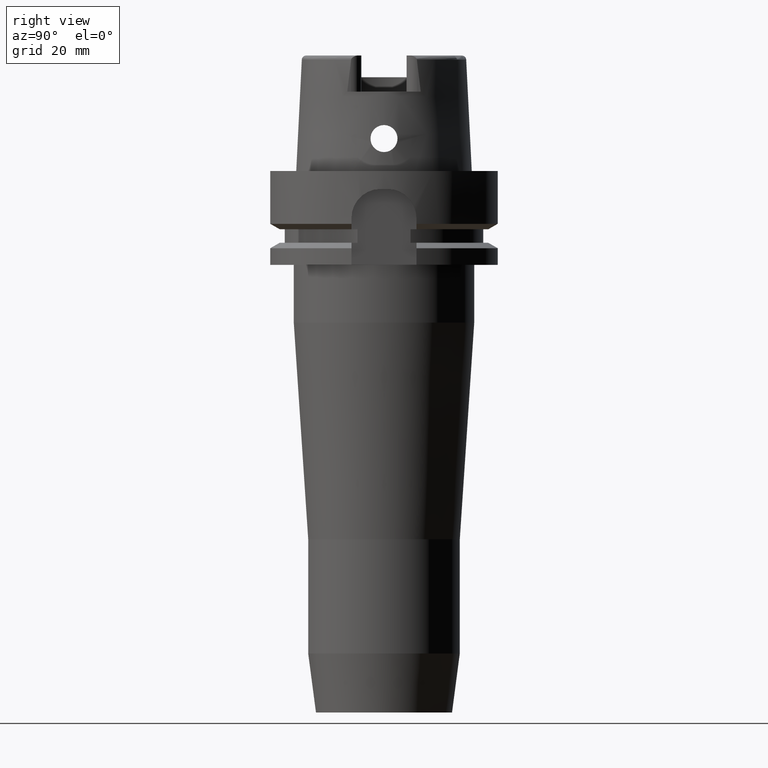
[diagram: clean part render]
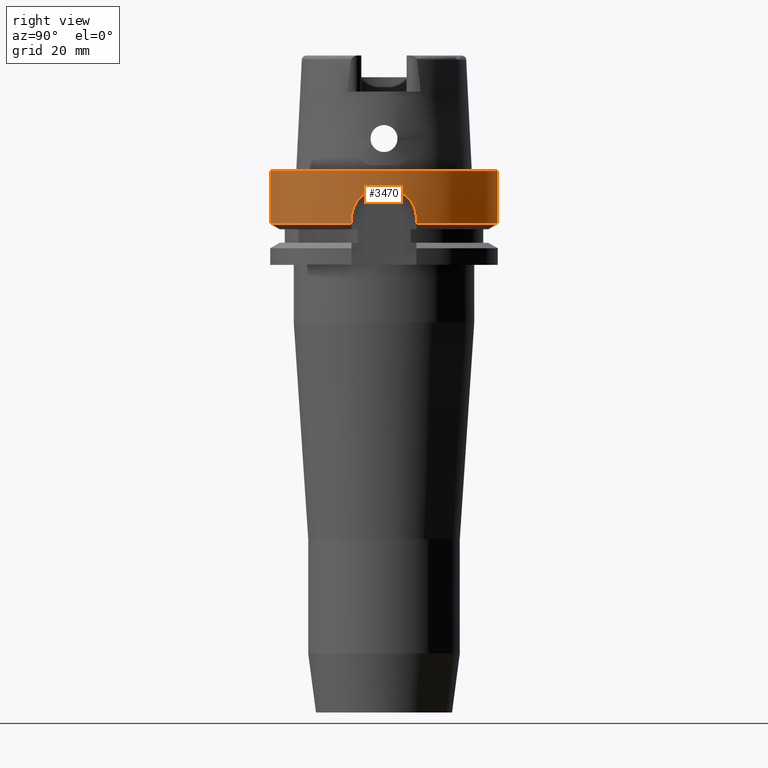
[diagram: same view with one face highlighted and labeled with its STEP entity id]
A machine part, right view. The second image highlights one B-rep face of the part: STEP entity #3470.
In plain terms, the highlighted cylindrical surface (partial cylindrical patch) has radius 31.5 mm, axis along (0, 0, 1).
Its self-contained STEP definition (entity closure, byte-faithful):
#622=CARTESIAN_POINT('',(0.E0,0.E0,3.410605131648E-13));
#623=DIRECTION('',(0.E0,0.E0,-1.E0));
#624=DIRECTION('',(0.E0,1.E0,0.E0));
#625=AXIS2_PLACEMENT_3D('',#622,#623,#624);
#653=DIRECTION('',(0.E0,-2.672583210396E-14,-1.E0));
#654=VECTOR('',#653,1.462250092524E1);
#655=CARTESIAN_POINT('',(0.E0,-3.15E1,1.894780628694E-13));
#656=LINE('',#655,#654);
#1309=CARTESIAN_POINT('',(0.E0,0.E0,-1.462250092524E1));
#1310=DIRECTION('',(0.E0,0.E0,1.E0));
#1311=DIRECTION('',(0.E0,-1.E0,0.E0));
#1312=AXIS2_PLACEMENT_3D('',#1309,#1310,#1311);
#1317=CARTESIAN_POINT('',(3.018691773962E1,-8.999999854527E0,
-1.462250209851E1));
#1327=DIRECTION('',(1.272501108166E-7,-4.268086930026E-7,9.999999999999E-1));
#1328=VECTOR('',#1327,1.622495340011E0);
#1329=CARTESIAN_POINT('',(3.018691748979E1,9.000000692495E0,-1.462249534001E1));
#1330=LINE('',#1329,#1328);
#1334=CARTESIAN_POINT('',(3.018691769625E1,9.E0,-1.3E1));
#1335=CARTESIAN_POINT('',(3.018691769625E1,9.E0,-1.241048012714E1));
#1336=CARTESIAN_POINT('',(3.022477429071E1,8.874674928781E0,-1.125527375286E1));
#1337=CARTESIAN_POINT('',(3.039420642457E1,8.285578509355E0,-9.533021993172E0));
#1338=CARTESIAN_POINT('',(3.064154410586E1,7.333787854359E0,-8.004139985430E0));
#1339=CARTESIAN_POINT('',(3.092230579966E1,6.061724396441E0,-6.717716601046E0));
#1340=CARTESIAN_POINT('',(3.118795138983E1,4.527554810707E0,-5.741916643697E0));
#1341=CARTESIAN_POINT('',(3.139313560931E1,2.788121488712E0,-5.132727592283E0));
#1342=CARTESIAN_POINT('',(3.146489138377E1,1.605490030845E0,-5.E0));
#1343=CARTESIAN_POINT('',(3.148412298286E1,1.E0,-5.E0));
#1348=CARTESIAN_POINT('',(3.148412298286E1,-1.E0,-5.E0));
#1349=CARTESIAN_POINT('',(3.146528542637E1,-1.593083945252E0,-5.E0));
#1350=CARTESIAN_POINT('',(3.139554190346E1,-2.756156013825E0,
-5.127372813544E0));
#1351=CARTESIAN_POINT('',(3.119451681759E1,-4.481421982994E0,
-5.720642368144E0));
#1352=CARTESIAN_POINT('',(3.093088310748E1,-6.018511260693E0,
-6.683066208255E0));
#1353=CARTESIAN_POINT('',(3.064926340209E1,-7.302202669985E0,
-7.963583792359E0));
#1354=CARTESIAN_POINT('',(3.039893858391E1,-8.268707101846E0,
-9.495135624564E0));
#1355=CARTESIAN_POINT('',(3.022579104800E1,-8.871359161049E0,
-1.123337128715E1));
#1356=CARTESIAN_POINT('',(3.018691769625E1,-9.E0,-1.240234130751E1));
#1357=CARTESIAN_POINT('',(3.018691769625E1,-9.E0,-1.3E1));
#1362=DIRECTION('',(2.673089845619E-8,8.965926588973E-8,-1.E0));
#1363=VECTOR('',#1362,1.622502098514E0);
#1364=CARTESIAN_POINT('',(3.018691769625E1,-9.E0,-1.3E1));
#1365=LINE('',#1364,#1363);
#1369=DIRECTION('',(0.E0,2.672583210396E-14,-1.E0));
#1370=VECTOR('',#1369,1.462250092524E1);
#1371=CARTESIAN_POINT('',(0.E0,3.15E1,1.894780628694E-13));
#1372=LINE('',#1371,#1370);
#1390=CARTESIAN_POINT('',(0.E0,0.E0,-5.E0));
#1391=DIRECTION('',(0.E0,0.E0,1.E0));
#1392=DIRECTION('',(9.994959677099E-1,-3.174603174603E-2,0.E0));
#1393=AXIS2_PLACEMENT_3D('',#1390,#1391,#1392);
#1417=CARTESIAN_POINT('',(3.018691748979E1,9.000000692495E0,-1.462249534001E1));
#1422=CARTESIAN_POINT('',(0.E0,0.E0,-1.462250092524E1));
#1423=DIRECTION('',(0.E0,0.E0,1.E0));
#1424=DIRECTION('',(9.583148474999E-1,2.857142857143E-1,0.E0));
#1425=AXIS2_PLACEMENT_3D('',#1422,#1423,#1424);
#2582=VERTEX_POINT('',#1317);
#2583=CARTESIAN_POINT('',(3.018691769625E1,-9.E0,-1.3E1));
#2584=VERTEX_POINT('',#2583);
#2593=CARTESIAN_POINT('',(0.E0,-3.15E1,-1.462250092524E1));
#2594=VERTEX_POINT('',#2593);
#2595=VERTEX_POINT('',#1417);
#2596=CARTESIAN_POINT('',(0.E0,3.15E1,-1.462250092524E1));
#2597=VERTEX_POINT('',#2596);
#2599=CARTESIAN_POINT('',(0.E0,3.15E1,1.894780628694E-13));
#2600=VERTEX_POINT('',#2599);
#2601=CARTESIAN_POINT('',(0.E0,-3.15E1,3.410605131648E-13));
#2602=VERTEX_POINT('',#2601);
#2605=CARTESIAN_POINT('',(3.018691769625E1,9.E0,-1.3E1));
#2606=VERTEX_POINT('',#2605);
#2607=VERTEX_POINT('',#1343);
#2608=CARTESIAN_POINT('',(3.148412298286E1,-1.E0,-5.E0));
#2609=VERTEX_POINT('',#2608);
#3448=CARTESIAN_POINT('',(0.E0,0.E0,-1.591E2));
#3449=DIRECTION('',(0.E0,0.E0,1.E0));
#3450=DIRECTION('',(0.E0,1.E0,0.E0));
#3451=AXIS2_PLACEMENT_3D('',#3448,#3449,#3450);
#3452=CYLINDRICAL_SURFACE('',#3451,3.15E1);
#3454=ORIENTED_EDGE('',*,*,#3453,.T.);
#3456=ORIENTED_EDGE('',*,*,#3455,.T.);
#3458=ORIENTED_EDGE('',*,*,#3457,.F.);
#3460=ORIENTED_EDGE('',*,*,#3459,.T.);
#3461=ORIENTED_EDGE('',*,*,#3425,.T.);
#3462=ORIENTED_EDGE('',*,*,#3440,.F.);
#3463=ORIENTED_EDGE('',*,*,#2998,.F.);
#3464=ORIENTED_EDGE('',*,*,#2977,.F.);
#3465=ORIENTED_EDGE('',*,*,#2995,.T.);
#3467=ORIENTED_EDGE('',*,*,#3466,.F.);
#3468=EDGE_LOOP('',(#3454,#3456,#3458,#3460,#3461,#3462,#3463,#3464,#3465,
#3467));
#3469=FACE_OUTER_BOUND('',#3468,.F.);
#626=CIRCLE('',#625,3.15E1);
#1313=CIRCLE('',#1312,3.15E1);
#1344=B_SPLINE_CURVE_WITH_KNOTS('',3,(#1334,#1335,#1336,#1337,#1338,#1339,#1340,
#1341,#1342,#1343),.UNSPECIFIED.,.F.,.F.,(4,1,1,1,1,1,1,4),(0.E0,
1.428571428571E-1,2.857142857143E-1,4.285714285714E-1,5.714285714286E-1,
7.142857142857E-1,8.571428571429E-1,1.E0),.UNSPECIFIED.);
#1358=B_SPLINE_CURVE_WITH_KNOTS('',3,(#1348,#1349,#1350,#1351,#1352,#1353,#1354,
#1355,#1356,#1357),.UNSPECIFIED.,.F.,.F.,(4,1,1,1,1,1,1,4),(0.E0,
1.428571428571E-1,2.857142857143E-1,4.285714285714E-1,5.714285714286E-1,
7.142857142857E-1,8.571428571429E-1,1.E0),.UNSPECIFIED.);
#1394=CIRCLE('',#1393,3.15E1);
#1426=CIRCLE('',#1425,3.15E1);
#2977=EDGE_CURVE('',#2600,#2602,#626,.T.);
#2995=EDGE_CURVE('',#2600,#2597,#1372,.T.);
#2998=EDGE_CURVE('',#2602,#2594,#656,.T.);
#3425=EDGE_CURVE('',#2584,#2582,#1365,.T.);
#3440=EDGE_CURVE('',#2594,#2582,#1313,.T.);
#3453=EDGE_CURVE('',#2595,#2606,#1330,.T.);
#3455=EDGE_CURVE('',#2606,#2607,#1344,.T.);
#3457=EDGE_CURVE('',#2609,#2607,#1394,.T.);
#3459=EDGE_CURVE('',#2609,#2584,#1358,.T.);
#3466=EDGE_CURVE('',#2595,#2597,#1426,.T.);
#3470=ADVANCED_FACE('',(#3469),#3452,.T.);